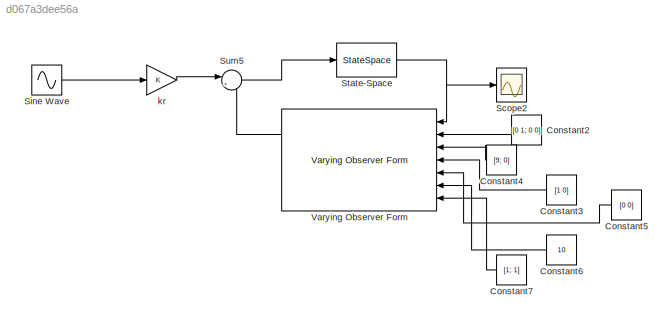
MODEL slx_d067a3dee56a
KIND model
CONFIG AbsTol = auto
CONFIG EnableMultiTasking = off
CONFIG FixedStep = auto
CONFIG MaxStep = auto
CONFIG MinStep = auto
CONFIG RelTol = 1e-3
CONFIG SampleTimeConstraint = Unconstrained
CONFIG SolverName = VariableStepAuto
CONFIG StartTime = 0.0
CONFIG StopTime = 10.0
BLOCK [Constant] Constant2
  NameLocation = top
  Value = [0 1; 0 0]
  VectorParams1D = off
BLOCK [Constant] Constant3
  NameLocation = top
  Value = [1 0]
  VectorParams1D = off
BLOCK [Constant] Constant4
  NameLocation = top
  Value = [9; 0]
  VectorParams1D = off
BLOCK [Constant] Constant5
  NameLocation = top
  Value = [0 0]
  VectorParams1D = off
BLOCK [Constant] Constant6
  NameLocation = top
  Value = 10
BLOCK [Constant] Constant7
  NameLocation = top
  Value = [1; 1]
  VectorParams1D = off
BLOCK [Scope] Scope2
  Floating = off
  NumInputPorts = 1
  Ports = [1]
  ScopeSpecificationString = Simulink.scopes.TimeScopeBlockCfg('CurrentConfiguration', extmgr.ConfigurationSet(extmgr.Configuration('Core','General UI',true),extmgr.Configuration('Core','Source UI',true),extmgr.Configuration('Sources','WiredSimulink',true,'DataLoggingVariableName','ScopeData2'),extmgr.Configuration('Visuals','Time Domain',true),extmgr.Configuration('Tools','Plot Navigation',true),extmgr.Configuration('Tools',...<+58ch>
BLOCK [Sin] Sine Wave
  Ports = [0, 1]
  SampleTime = 0
  VectorParams1D = off
BLOCK [StateSpace] State-Space
  A = [0 1; 0 0]
  B = [9; 0]
  C = [1 0]
  D = 0
  InitialCondition = 0
  Ports = [1, 1]
BLOCK [Sum] Sum5
  Inputs = |++
  Ports = [2, 1]
BLOCK [Reference] Varying Observer Form  REF=cstblocks/Linear Parameter Varying/Varying Observer Form
  NameLocation = top
  Ports = [7, 3]
  SourceBlock = cstblocks/Linear Parameter Varying/Varying Observer Form
  SourceProductBaseCode = CT
  SourceType = Varying Observer Form
BLOCK [Gain] kr
LINE Constant2:1 -> Varying Observer Form:2
LINE Constant3:1 -> Varying Observer Form:4
LINE Constant4:1 -> Varying Observer Form:3
LINE Constant5:1 -> Varying Observer Form:5
LINE Constant6:1 -> Varying Observer Form:6
LINE Constant7:1 -> Varying Observer Form:7
LINE Sine Wave:1 -> kr:1
NET State-Space:1 -> Scope2:1, Varying Observer Form:1
LINE Sum5:1 -> State-Space:1
LINE Varying Observer Form:1 -> Sum5:2
LINE kr:1 -> Sum5:1
note: NET lines group one-source signal fan-out (src -> all destinations, sorted); 1:1 wires keep LINE
